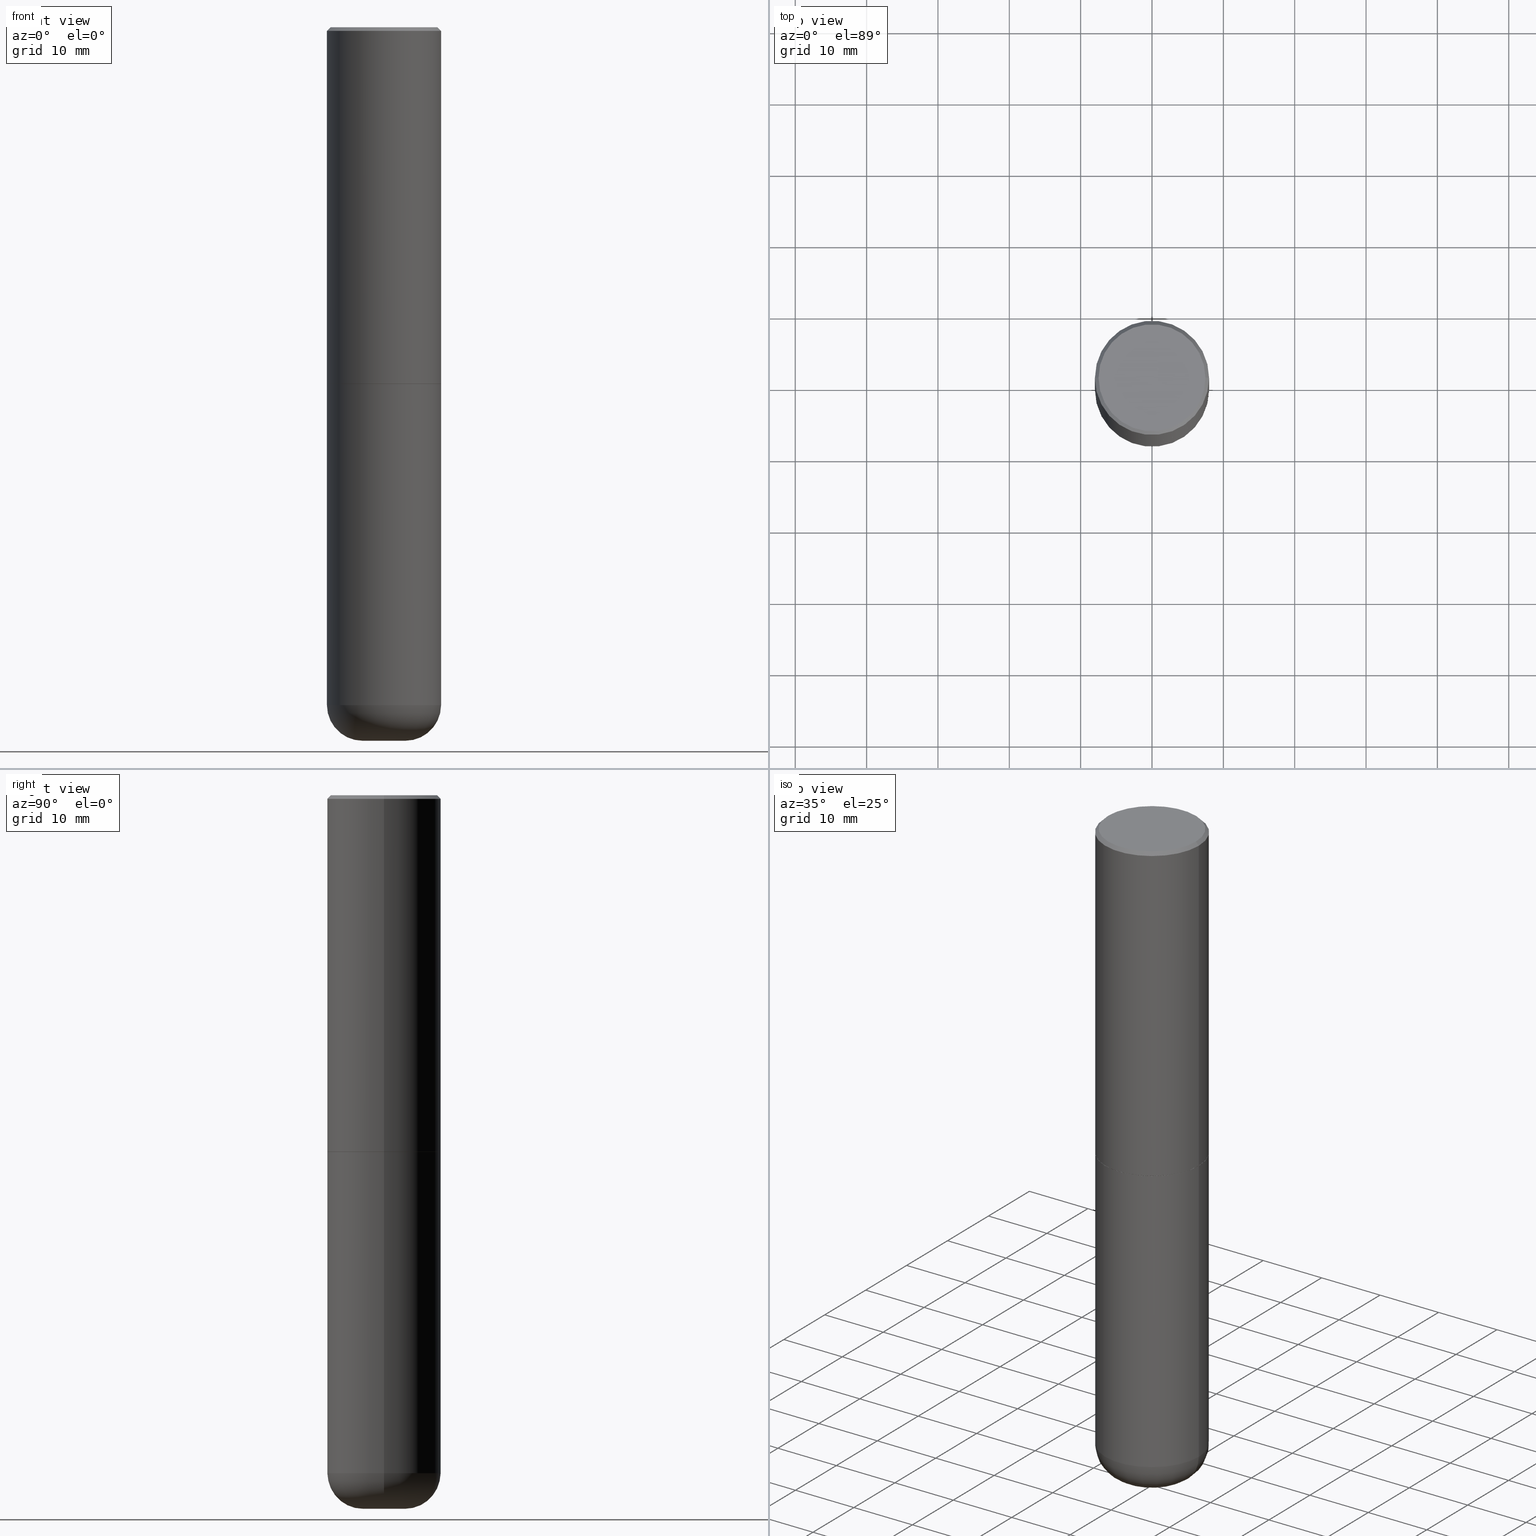
[diagram: canonical four-view strip — front | top / right | iso, engineering-drawing reading convention]
A machine part, canonical four-view strip (front | top / right | iso — engineering-drawing reading convention). The complete STEP part file that produces these views, byte-faithful:
ISO-10303-21;
HEADER;
FILE_DESCRIPTION (( 'STEP AP203' ),
    '1' );
FILE_NAME ('42628.STEP',
    '2024-03-03T22:19:23',
    ( '' ),
    ( '' ),
    'SwSTEP 2.0',
    'SolidWorks 2023',
    '' );
FILE_SCHEMA (( 'CONFIG_CONTROL_DESIGN' ));
ENDSEC;

DATA;
#1 = UNCERTAINTY_MEASURE_WITH_UNIT (LENGTH_MEASURE( 1.000000000000000082E-05 ), #382, 'distance_accuracy_value', 'NONE');
#2 = ORIENTED_EDGE ( 'NONE', *, *, #5, .T. ) ;
#3 = APPLICATION_CONTEXT ( 'configuration controlled 3d designs of mechanical parts and assemblies' ) ;
#4 = AXIS2_PLACEMENT_3D ( 'NONE', #415, #354, #408 ) ;
#5 = EDGE_CURVE ( 'NONE', #242, #30, #359, .T. ) ;
#6 = ORIENTED_EDGE ( 'NONE', *, *, #285, .T. ) ;
#7 = CARTESIAN_POINT ( 'NONE',  ( 0.3139500000000000068, -9.065282148172338719E-15, -1.968500000000000583 ) ) ;
#8 = APPROVAL_DATE_TIME ( #44, #115 ) ;
#9 = ORIENTED_EDGE ( 'NONE', *, *, #209, .T. ) ;
#10 = AXIS2_PLACEMENT_3D ( 'NONE', #411, #251, #190 ) ;
#11 = CARTESIAN_POINT ( 'NONE',  ( -0.1180500000000000438, -1.186390067029574163E-14, -3.937000000000000277 ) ) ;
#12 = EDGE_CURVE ( 'NONE', #186, #287, #225, .T. ) ;
#13 = APPROVAL_STATUS ( 'not_yet_approved' ) ;
#14 = CARTESIAN_POINT ( 'NONE',  ( 0.1180500000000000160, -1.388282809950811403E-14, -3.740100000000000424 ) ) ;
#15 = DIRECTION ( 'NONE',  ( 2.438088387897960049E-29, -3.491481338843145188E-15, -1.000000000000000000 ) ) ;
#16 = APPROVAL_PERSON_ORGANIZATION ( #158, #109, #239 ) ;
#17 = DIRECTION ( 'NONE',  ( 1.000000000000000000, -6.982962677686265922E-15, 4.876176775795935793E-29 ) ) ;
#18 = CARTESIAN_POINT ( 'NONE',  ( -7.306959900346538153E-46, 1.043240219266313067E-31, 2.987958743070287587E-17 ) ) ;
#19 = DIRECTION ( 'NONE',  ( 1.000000000000000000, -6.982962677686267499E-15, 4.876696176320539145E-29 ) ) ;
#20 = CC_DESIGN_DATE_AND_TIME_ASSIGNMENT ( #272, #40, ( #208 ) ) ;
#21 = CIRCLE ( 'NONE', #93, 0.3139500000000000068 ) ;
#22 = DIRECTION ( 'NONE',  ( 1.000000000000000000, -6.982962677686269866E-15, 0.000000000000000000 ) ) ;
#23 = FACE_OUTER_BOUND ( 'NONE', #57, .T. ) ;
#24 = EDGE_CURVE ( 'NONE', #86, #153, #233, .T. ) ;
#25 = CARTESIAN_POINT ( 'NONE',  ( 9.146297882013029477E-29, -1.305848935540725085E-14, -3.740100000000000424 ) ) ;
#26 = EDGE_LOOP ( 'NONE', ( #150, #160, #295, #218 ) ) ;
#27 = ADVANCED_FACE ( 'NONE', ( #78 ), #81, .T. ) ;
#28 = APPLICATION_PROTOCOL_DEFINITION ( 'international standard', 'config_control_design', 1994, #398 ) ;
#29 = AXIS2_PLACEMENT_3D ( 'NONE', #347, #51, #378 ) ;
#30 = VERTEX_POINT ( 'NONE', #365 ) ;
#31 = CARTESIAN_POINT ( 'NONE',  ( 4.890937612370289799E-31, -6.982962677686315028E-17, -0.02000000000000006981 ) ) ;
#32 = ORIENTED_EDGE ( 'NONE', *, *, #174, .F. ) ;
#33 = VERTEX_POINT ( 'NONE', #392 ) ;
#34 = ADVANCED_FACE ( 'NONE', ( #299 ), #307, .T. ) ;
#35 = CARTESIAN_POINT ( 'NONE',  ( 0.000000000000000000, 0.000000000000000000, 0.000000000000000000 ) ) ;
#36 = AXIS2_PLACEMENT_3D ( 'NONE', #25, #379, #183 ) ;
#37 = DIRECTION ( 'NONE',  ( -2.445468806185136597E-29, 3.491481338843145583E-15, 1.000000000000000000 ) ) ;
#38 = PERSON_AND_ORGANIZATION ( #204, #59 ) ;
#39 = ORIENTED_EDGE ( 'NONE', *, *, #105, .T. ) ;
#40 = DATE_TIME_ROLE ( 'creation_date' ) ;
#41 = LINE ( 'NONE', #7, #177 ) ;
#42 = CONICAL_SURFACE ( 'NONE', #281, 0.3139500000000000068, 0.7853981633974141952 ) ;
#43 = CIRCLE ( 'NONE', #282, 0.3149500000000002853 ) ;
#44 = DATE_AND_TIME ( #163, #243 ) ;
#45 = DIRECTION ( 'NONE',  ( -2.445468806185136597E-29, 3.491481338843145583E-15, 1.000000000000000000 ) ) ;
#46 = DIRECTION ( 'NONE',  ( 1.000000000000000000, -6.982962677686266711E-15, 4.876176775795936353E-29 ) ) ;
#47 = PLANE ( 'NONE',  #393 ) ;
#48 = LOCAL_TIME ( 17, 19, 23.00000000000000000, #98 ) ;
#49 = CARTESIAN_POINT ( 'NONE',  ( 4.890937612370289799E-31, -6.982962677686315028E-17, -0.02000000000000006981 ) ) ;
#50 = CARTESIAN_POINT ( 'NONE',  ( 9.146297882013029477E-29, -1.305848935540725085E-14, -3.740100000000000424 ) ) ;
#51 = DIRECTION ( 'NONE',  ( 2.438088387897960049E-29, -3.491481338843145188E-15, -1.000000000000000000 ) ) ;
#52 = VECTOR ( 'NONE', #227, 39.37007874015748143 ) ;
#53 = PERSON_AND_ORGANIZATION ( #204, #59 ) ;
#54 = ORIENTED_EDGE ( 'NONE', *, *, #179, .T. ) ;
#55 = ADVANCED_FACE ( 'NONE', ( #337 ), #42, .T. ) ;
#56 = DIRECTION ( 'NONE',  ( -2.445468806185136877E-29, 3.491481338843145188E-15, 1.000000000000000000 ) ) ;
#57 = EDGE_LOOP ( 'NONE', ( #356, #9, #123, #61 ) ) ;
#58 = DIRECTION ( 'NONE',  ( 0.000000000000000000, 0.000000000000000000, 1.000000000000000000 ) ) ;
#59 = ORGANIZATION ( 'UNSPECIFIED', 'UNSPECIFIED', '' ) ;
#60 = DIMENSIONAL_EXPONENTS ( 1.000000000000000000, 0.000000000000000000, 0.000000000000000000, 0.000000000000000000, 0.000000000000000000, 0.000000000000000000, 0.000000000000000000 ) ;
#61 = ORIENTED_EDGE ( 'NONE', *, *, #12, .F. ) ;
#62 = EDGE_LOOP ( 'NONE', ( #191, #383, #2, #193 ) ) ;
#63 = CALENDAR_DATE ( 2024, 3, 3 ) ;
#64 = ORIENTED_EDGE ( 'NONE', *, *, #87, .T. ) ;
#65 = COORDINATED_UNIVERSAL_TIME_OFFSET ( 5, 0, .BEHIND. ) ;
#66 = AXIS2_PLACEMENT_3D ( 'NONE', #92, #255, #294 ) ;
#67 = DIRECTION ( 'NONE',  ( 1.000000000000000000, -6.982962677686266711E-15, 0.000000000000000000 ) ) ;
#68 = PRODUCT ( '42628', '42628', '', ( #152 ) ) ;
#69 = EDGE_CURVE ( 'NONE', #327, #125, #410, .T. ) ;
#70 = MANIFOLD_SOLID_BREP ( 'Body-Move/Copy2[2]', #167 ) ;
#71 = APPLICATION_PROTOCOL_DEFINITION ( 'international standard', 'config_control_design', 1994, #3 ) ;
#72 = CARTESIAN_POINT ( 'NONE',  ( 4.813905344975442956E-29, -6.872981015512734074E-15, -1.968500000000000583 ) ) ;
#73 = PRODUCT_RELATED_PRODUCT_CATEGORY ( 'detail', '', ( #68 ) ) ;
#74 = CARTESIAN_POINT ( 'NONE',  ( 4.811459876169256792E-29, -6.869489534173889489E-15, -1.967500000000000249 ) ) ;
#75 = APPROVAL_DATE_TIME ( #366, #109 ) ;
#76 = DIRECTION ( 'NONE',  ( -1.000000000000000000, 6.982962677686265922E-15, -4.876176775795935793E-29 ) ) ;
#77 = AXIS2_PLACEMENT_3D ( 'NONE', #341, #172, #67 ) ;
#78 = FACE_OUTER_BOUND ( 'NONE', #322, .T. ) ;
#79 = DIRECTION ( 'NONE',  ( -1.000000000000000000, 6.982962677686266711E-15, 0.000000000000000000 ) ) ;
#80 = CARTESIAN_POINT ( 'NONE',  ( -0.3139500000000000068, -4.642232096593899886E-15, -1.968500000000000583 ) ) ;
#81 = CONICAL_SURFACE ( 'NONE', #252, 0.3139500000000000068, 0.7853981633974141952 ) ;
#82 = FACE_OUTER_BOUND ( 'NONE', #149, .T. ) ;
#83 = CARTESIAN_POINT ( 'NONE',  ( 0.000000000000000000, 0.000000000000000000, 0.000000000000000000 ) ) ;
#84 = LINE ( 'NONE', #147, #310 ) ;
#85 = VECTOR ( 'NONE', #56, 39.37007874015748143 ) ;
#86 = VERTEX_POINT ( 'NONE', #11 ) ;
#87 = EDGE_CURVE ( 'NONE', #86, #33, #101, .T. ) ;
#88 = ORIENTED_EDGE ( 'NONE', *, *, #395, .F. ) ;
#89 = DIRECTION ( 'NONE',  ( -1.000000000000000000, 6.982962677686266711E-15, 0.000000000000000000 ) ) ;
#90 = VERTEX_POINT ( 'NONE', #271 ) ;
#91 = EDGE_CURVE ( 'NONE', #153, #242, #122, .T. ) ;
#92 = CARTESIAN_POINT ( 'NONE',  ( 4.813905344975442956E-29, -6.872981015512734074E-15, -1.968500000000000583 ) ) ;
#93 = AXIS2_PLACEMENT_3D ( 'NONE', #220, #258, #263 ) ;
#94 = APPROVAL_PERSON_ORGANIZATION ( #38, #104, #229 ) ;
#95 = VERTEX_POINT ( 'NONE', #399 ) ;
#96 = APPROVAL_STATUS ( 'not_yet_approved' ) ;
#97 = ORIENTED_EDGE ( 'NONE', *, *, #372, .T. ) ;
#98 = COORDINATED_UNIVERSAL_TIME_OFFSET ( 5, 0, .BEHIND. ) ;
#99 = VERTEX_POINT ( 'NONE', #200 ) ;
#100 = ADVANCED_FACE ( 'NONE', ( #364 ), #162, .T. ) ;
#101 = CIRCLE ( 'NONE', #344, 0.1968999999999998529 ) ;
#102 = AXIS2_PLACEMENT_3D ( 'NONE', #18, #371, #19 ) ;
#103 = DIRECTION ( 'NONE',  ( -1.000000000000000000, 7.105427357600997914E-15, 0.000000000000000000 ) ) ;
#104 = APPROVAL ( #96, 'UNSPECIFIED' ) ;
#105 = EDGE_CURVE ( 'NONE', #296, #327, #41, .T. ) ;
#106 = DIRECTION ( 'NONE',  ( 1.000000000000000000, -6.982962677686270655E-15, 0.000000000000000000 ) ) ;
#107 = DATE_TIME_ROLE ( 'classification_date' ) ;
#108 = DIRECTION ( 'NONE',  ( -2.445468806185136597E-29, 3.491481338843145583E-15, 1.000000000000000000 ) ) ;
#109 = APPROVAL ( #13, 'UNSPECIFIED' ) ;
#110 = DIRECTION ( 'NONE',  ( 1.000000000000000000, -6.982962677686267499E-15, 0.000000000000000000 ) ) ;
#111 = CIRCLE ( 'NONE', #323, 0.3149500000000000077 ) ;
#112 = DIRECTION ( 'NONE',  ( 1.000000000000000000, -6.982962677686266711E-15, 4.883557194083112901E-29 ) ) ;
#113 = DIRECTION ( 'NONE',  ( 1.000000000000000000, -6.982962677686266711E-15, 4.883557194083112901E-29 ) ) ;
#114 = DIRECTION ( 'NONE',  ( -2.438088387897960049E-29, 3.491481338843145188E-15, 1.000000000000000000 ) ) ;
#115 = APPROVAL ( #328, 'UNSPECIFIED' ) ;
#116 = ADVANCED_FACE ( 'NONE', ( #132 ), #198, .T. ) ;
#117 = CIRCLE ( 'NONE', #159, 0.3149500000000000077 ) ;
#118 = APPROVAL_PERSON_ORGANIZATION ( #197, #115, #137 ) ;
#119 = CARTESIAN_POINT ( 'NONE',  ( 0.2949499999999999345, -2.127023677808860075E-15, 2.987958743071751910E-17 ) ) ;
#120 = CARTESIAN_POINT ( 'NONE',  ( 9.146297882013029477E-29, -1.305848935540725085E-14, -3.740100000000000424 ) ) ;
#121 = ORIENTED_EDGE ( 'NONE', *, *, #161, .F. ) ;
#122 = CIRCLE ( 'NONE', #145, 0.1968999999999998529 ) ;
#123 = ORIENTED_EDGE ( 'NONE', *, *, #245, .T. ) ;
#124 = ADVANCED_BREP_SHAPE_REPRESENTATION ( '42628', ( #210, #70, #195 ), #247 ) ;
#125 = VERTEX_POINT ( 'NONE', #335 ) ;
#126 = ORIENTED_EDGE ( 'NONE', *, *, #245, .F. ) ;
#127 = CARTESIAN_POINT ( 'NONE',  ( -0.3149500000000001743, 2.237854346276436774E-15, -1.549218606675783237E-29 ) ) ;
#128 = AXIS2_PLACEMENT_3D ( 'NONE', #83, #139, #46 ) ;
#129 = EDGE_LOOP ( 'NONE', ( #54, #64, #189, #355 ) ) ;
#130 = PERSON_AND_ORGANIZATION ( #204, #59 ) ;
#131 = CARTESIAN_POINT ( 'NONE',  ( 9.627810689950883669E-29, -1.374596203102546341E-14, -3.937000000000000277 ) ) ;
#132 = FACE_OUTER_BOUND ( 'NONE', #391, .T. ) ;
#133 = PERSON_AND_ORGANIZATION_ROLE ( 'design_supplier' ) ;
#134 = CONICAL_SURFACE ( 'NONE', #226, 0.3149500000000000077, 0.7853981633974473908 ) ;
#135 = CARTESIAN_POINT ( 'NONE',  ( -0.1180500000000000160, -1.221969365584245109E-14, -3.740100000000000424 ) ) ;
#136 = DIRECTION ( 'NONE',  ( -2.445468806185136597E-29, 3.491481338843145583E-15, 1.000000000000000000 ) ) ;
#137 = APPROVAL_ROLE ( '' ) ;
#138 = DIRECTION ( 'NONE',  ( -6.982962677686266711E-15, -1.000000000000000000, 3.491481338843145583E-15 ) ) ;
#139 = DIRECTION ( 'NONE',  ( -2.445468806185136597E-29, 3.491481338843145583E-15, 1.000000000000000000 ) ) ;
#140 = VECTOR ( 'NONE', #250, 39.37007874015748143 ) ;
#141 = EDGE_CURVE ( 'NONE', #99, #186, #305, .T. ) ;
#142 = DIRECTION ( 'NONE',  ( 1.000000000000000000, -6.982962677686267499E-15, 0.000000000000000000 ) ) ;
#143 = CARTESIAN_POINT ( 'NONE',  ( 4.811459876169256792E-29, -6.869489534173889489E-15, -1.967500000000000249 ) ) ;
#144 = CARTESIAN_POINT ( 'NONE',  ( 0.3149500000000001743, -2.199284095337290660E-15, 1.535751875536930690E-29 ) ) ;
#145 = AXIS2_PLACEMENT_3D ( 'NONE', #14, #138, #106 ) ;
#146 = CC_DESIGN_APPROVAL ( #115, ( #212 ) ) ;
#147 = CARTESIAN_POINT ( 'NONE',  ( 0.3149500000000000077, -2.230543471175007450E-15, -0.02000000000000006981 ) ) ;
#148 = DIRECTION ( 'NONE',  ( 1.000000000000000000, -6.982962677686269866E-15, 0.000000000000000000 ) ) ;
#149 = EDGE_LOOP ( 'NONE', ( #121, #377, #221, #203 ) ) ;
#150 = ORIENTED_EDGE ( 'NONE', *, *, #87, .F. ) ;
#151 = CC_DESIGN_APPROVAL ( #109, ( #208 ) ) ;
#152 = MECHANICAL_CONTEXT ( 'NONE', #398, 'mechanical' ) ;
#153 = VERTEX_POINT ( 'NONE', #181 ) ;
#154 = ORIENTED_EDGE ( 'NONE', *, *, #209, .F. ) ;
#155 = ADVANCED_FACE ( 'NONE', ( #82 ), #134, .T. ) ;
#156 = ORIENTED_EDGE ( 'NONE', *, *, #238, .F. ) ;
#157 = VECTOR ( 'NONE', #165, 39.37007874015748143 ) ;
#158 = PERSON_AND_ORGANIZATION ( #204, #59 ) ;
#159 = AXIS2_PLACEMENT_3D ( 'NONE', #215, #386, #148 ) ;
#160 = ORIENTED_EDGE ( 'NONE', *, *, #24, .T. ) ;
#161 = EDGE_CURVE ( 'NONE', #256, #287, #84, .T. ) ;
#162 = CYLINDRICAL_SURFACE ( 'NONE', #168, 0.3149500000000000077 ) ;
#163 = CALENDAR_DATE ( 2024, 3, 3 ) ;
#164 = ADVANCED_FACE ( 'NONE', ( #311 ), #342, .T. ) ;
#165 = DIRECTION ( 'NONE',  ( -2.445468806185136877E-29, 3.491481338843145188E-15, 1.000000000000000000 ) ) ;
#166 = CALENDAR_DATE ( 2024, 3, 3 ) ;
#167 = CLOSED_SHELL ( 'NONE', ( #55, #34, #360, #155, #301, #27, #219, #188 ) ) ;
#168 = AXIS2_PLACEMENT_3D ( 'NONE', #35, #108, #237 ) ;
#169 = DIRECTION ( 'NONE',  ( 2.438088387897960049E-29, -3.491481338843145188E-15, -1.000000000000000000 ) ) ;
#170 = CC_DESIGN_PERSON_AND_ORGANIZATION_ASSIGNMENT ( #53, #292, ( #68 ) ) ;
#171 = PERSON_AND_ORGANIZATION ( #204, #59 ) ;
#172 = DIRECTION ( 'NONE',  ( -2.445468806185136597E-29, 3.491481338843145583E-15, 1.000000000000000000 ) ) ;
#173 = CARTESIAN_POINT ( 'NONE',  ( 9.146297882013029477E-29, -1.305848935540725085E-14, -3.740100000000000424 ) ) ;
#174 = EDGE_CURVE ( 'NONE', #287, #186, #316, .T. ) ;
#175 = DIRECTION ( 'NONE',  ( -2.445468806185136597E-29, 3.491481338843145583E-15, 1.000000000000000000 ) ) ;
#176 = AXIS2_PLACEMENT_3D ( 'NONE', #205, #196, #331 ) ;
#177 = VECTOR ( 'NONE', #298, 39.37007874015748854 ) ;
#178 = CC_DESIGN_DATE_AND_TIME_ASSIGNMENT ( #235, #107, ( #340 ) ) ;
#179 = EDGE_CURVE ( 'NONE', #153, #86, #368, .T. ) ;
#180 = FACE_OUTER_BOUND ( 'NONE', #320, .T. ) ;
#181 = CARTESIAN_POINT ( 'NONE',  ( 0.1180500000000000438, -1.457030077512632659E-14, -3.937000000000000277 ) ) ;
#182 = CARTESIAN_POINT ( 'NONE',  ( 4.813905344975442395E-29, -6.872981015512733285E-15, -1.968500000000000361 ) ) ;
#183 = DIRECTION ( 'NONE',  ( 1.000000000000000000, -6.982962677686263555E-15, 0.000000000000000000 ) ) ;
#184 = CYLINDRICAL_SURFACE ( 'NONE', #4, 0.3149500000000001743 ) ;
#185 = ORIENTED_EDGE ( 'NONE', *, *, #302, .F. ) ;
#186 = VERTEX_POINT ( 'NONE', #214 ) ;
#187 = AXIS2_PLACEMENT_3D ( 'NONE', #50, #313, #113 ) ;
#188 = ADVANCED_FACE ( 'NONE', ( #180 ), #47, .F. ) ;
#189 = ORIENTED_EDGE ( 'NONE', *, *, #318, .F. ) ;
#190 = DIRECTION ( 'NONE',  ( 1.000000000000000000, -6.982962677686267499E-15, 4.876696176320539145E-29 ) ) ;
#191 = ORIENTED_EDGE ( 'NONE', *, *, #413, .F. ) ;
#192 = SHAPE_DEFINITION_REPRESENTATION ( #231, #124 ) ;
#193 = ORIENTED_EDGE ( 'NONE', *, *, #285, .F. ) ;
#194 = EDGE_CURVE ( 'NONE', #99, #256, #362, .T. ) ;
#195 = AXIS2_PLACEMENT_3D ( 'NONE', #321, #58, #324 ) ;
#196 = DIRECTION ( 'NONE',  ( -2.445468806185136597E-29, 3.491481338843145583E-15, 1.000000000000000000 ) ) ;
#197 = PERSON_AND_ORGANIZATION ( #204, #59 ) ;
#198 = PLANE ( 'NONE',  #216 ) ;
#199 = SECURITY_CLASSIFICATION_LEVEL ( 'unclassified' ) ;
#200 = CARTESIAN_POINT ( 'NONE',  ( -0.2949499999999999345, 2.094539655171995318E-15, 2.987958743068835590E-17 ) ) ;
#201 = PERSON_AND_ORGANIZATION ( #204, #59 ) ;
#202 = TOROIDAL_SURFACE ( 'NONE', #304, 0.1180500000000000160, 0.1968999999999998807 ) ;
#203 = ORIENTED_EDGE ( 'NONE', *, *, #12, .T. ) ;
#204 = PERSON ( 'UNSPECIFIED', 'UNSPECIFIED', 'UNSPECIFIED', ('UNSPECIFIED'), ('UNSPECIFIED'), ('UNSPECIFIED') ) ;
#205 = CARTESIAN_POINT ( 'NONE',  ( 0.000000000000000000, 0.000000000000000000, 0.000000000000000000 ) ) ;
#206 = ADVANCED_FACE ( 'NONE', ( #401 ), #202, .T. ) ;
#207 = CARTESIAN_POINT ( 'NONE',  ( 2.059624841783564063E-15, 0.2949499999999999345, -1.014872627176434088E-15 ) ) ;
#208 = PRODUCT_DEFINITION ( 'UNKNOWN', '', #212, #264 ) ;
#209 = EDGE_CURVE ( 'NONE', #125, #327, #43, .T. ) ;
#210 = MANIFOLD_SOLID_BREP ( 'Body-Move/Copy2[1]', #373 ) ;
#211 = LINE ( 'NONE', #144, #269 ) ;
#212 = PRODUCT_DEFINITION_FORMATION_WITH_SPECIFIED_SOURCE ( 'ANY', '', #68, .NOT_KNOWN. ) ;
#213 = DIRECTION ( 'NONE',  ( -2.445468806185136597E-29, 3.491481338843145583E-15, 1.000000000000000000 ) ) ;
#214 = CARTESIAN_POINT ( 'NONE',  ( -0.3149500000000000077, 2.129454468560426573E-15, -0.02000000000000006981 ) ) ;
#215 = CARTESIAN_POINT ( 'NONE',  ( 4.813905344975442395E-29, -6.872981015512733285E-15, -1.968500000000000361 ) ) ;
#216 = AXIS2_PLACEMENT_3D ( 'NONE', #367, #169, #76 ) ;
#217 =( NAMED_UNIT ( * ) PLANE_ANGLE_UNIT ( ) SI_UNIT ( $, .RADIAN. ) );
#218 = ORIENTED_EDGE ( 'NONE', *, *, #361, .F. ) ;
#219 = ADVANCED_FACE ( 'NONE', ( #278 ), #280, .F. ) ;
#220 = CARTESIAN_POINT ( 'NONE',  ( 4.813905344975442956E-29, -6.872981015512734074E-15, -1.968500000000000583 ) ) ;
#221 = ORIENTED_EDGE ( 'NONE', *, *, #141, .T. ) ;
#222 = ADVANCED_FACE ( 'NONE', ( #244 ), #349, .T. ) ;
#223 = CARTESIAN_POINT ( 'NONE',  ( -0.3149500000000000077, 2.237854346276435590E-15, -1.549218606675782676E-29 ) ) ;
#224 = ORIENTED_EDGE ( 'NONE', *, *, #318, .T. ) ;
#225 = CIRCLE ( 'NONE', #77, 0.3149500000000000077 ) ;
#226 = AXIS2_PLACEMENT_3D ( 'NONE', #309, #343, #79 ) ;
#227 = DIRECTION ( 'NONE',  ( -2.445468806185136877E-29, 3.491481338843145188E-15, 1.000000000000000000 ) ) ;
#228 = EDGE_LOOP ( 'NONE', ( #224, #232, #185, #265 ) ) ;
#229 = APPROVAL_ROLE ( '' ) ;
#230 = ORIENTED_EDGE ( 'NONE', *, *, #194, .T. ) ;
#231 = PRODUCT_DEFINITION_SHAPE ( 'NONE', 'NONE',  #208 ) ;
#232 = ORIENTED_EDGE ( 'NONE', *, *, #413, .T. ) ;
#233 = CIRCLE ( 'NONE', #315, 0.1180500000000000438 ) ;
#234 = VECTOR ( 'NONE', #370, 39.37007874015748854 ) ;
#235 = DATE_AND_TIME ( #166, #283 ) ;
#236 = APPROVAL_DATE_TIME ( #270, #104 ) ;
#237 = DIRECTION ( 'NONE',  ( 1.000000000000000000, -6.982962677686266711E-15, 4.876176775795936353E-29 ) ) ;
#238 = EDGE_CURVE ( 'NONE', #95, #125, #246, .T. ) ;
#239 = APPROVAL_ROLE ( '' ) ;
#240 = CARTESIAN_POINT ( 'NONE',  ( 4.813905344975442956E-29, -6.872981015512734074E-15, -1.968500000000000583 ) ) ;
#241 = CIRCLE ( 'NONE', #36, 0.3149500000000000077 ) ;
#242 = VERTEX_POINT ( 'NONE', #375 ) ;
#243 = LOCAL_TIME ( 17, 19, 23.00000000000000000, #65 ) ;
#244 = FACE_OUTER_BOUND ( 'NONE', #26, .T. ) ;
#245 = EDGE_CURVE ( 'NONE', #327, #287, #211, .T. ) ;
#246 = LINE ( 'NONE', #80, #234 ) ;
#247 =( GEOMETRIC_REPRESENTATION_CONTEXT ( 3 ) GLOBAL_UNCERTAINTY_ASSIGNED_CONTEXT ( ( #1 ) ) GLOBAL_UNIT_ASSIGNED_CONTEXT ( ( #382, #217, #384 ) ) REPRESENTATION_CONTEXT ( 'NONE', 'WORKASPACE' ) );
#248 = FACE_OUTER_BOUND ( 'NONE', #418, .T. ) ;
#249 = ORIENTED_EDGE ( 'NONE', *, *, #330, .T. ) ;
#250 = DIRECTION ( 'NONE',  ( -0.7071067811865469066, 2.468850131082249961E-15, -0.7071067811865482389 ) ) ;
#251 = DIRECTION ( 'NONE',  ( -2.445468806185136597E-29, 3.491481338843145583E-15, 1.000000000000000000 ) ) ;
#252 = AXIS2_PLACEMENT_3D ( 'NONE', #240, #45, #273 ) ;
#253 = ORIENTED_EDGE ( 'NONE', *, *, #333, .T. ) ;
#254 = LOCAL_TIME ( 17, 19, 23.00000000000000000, #396 ) ;
#255 = DIRECTION ( 'NONE',  ( -2.445468806185136597E-29, 3.491481338843145583E-15, 1.000000000000000000 ) ) ;
#256 = VERTEX_POINT ( 'NONE', #119 ) ;
#257 = CC_DESIGN_PERSON_AND_ORGANIZATION_ASSIGNMENT ( #306, #334, ( #340 ) ) ;
#258 = DIRECTION ( 'NONE',  ( -2.445468806185136597E-29, 3.491481338843145583E-15, 1.000000000000000000 ) ) ;
#259 = ORIENTED_EDGE ( 'NONE', *, *, #395, .T. ) ;
#260 = CARTESIAN_POINT ( 'NONE',  ( 0.3149500000000002853, -9.068773629511181726E-15, -1.967500000000000249 ) ) ;
#261 = EDGE_LOOP ( 'NONE', ( #88, #409, #293, #358 ) ) ;
#262 = CIRCLE ( 'NONE', #10, 0.2949499999999999345 ) ;
#263 = DIRECTION ( 'NONE',  ( 1.000000000000000000, -6.982962677686269077E-15, 0.000000000000000000 ) ) ;
#264 = DESIGN_CONTEXT ( 'detailed design', #3, 'design' ) ;
#265 = ORIENTED_EDGE ( 'NONE', *, *, #5, .F. ) ;
#266 = DIRECTION ( 'NONE',  ( -2.445468806185136597E-29, 3.491481338843145583E-15, 1.000000000000000000 ) ) ;
#267 = ORIENTED_EDGE ( 'NONE', *, *, #333, .F. ) ;
#268 = ADVANCED_FACE ( 'NONE', ( #248 ), #376, .F. ) ;
#269 = VECTOR ( 'NONE', #406, 39.37007874015748143 ) ;
#270 = DATE_AND_TIME ( #63, #277 ) ;
#271 = CARTESIAN_POINT ( 'NONE',  ( -0.3149500000000000077, -7.727880839183556085E-15, -1.968500000000000361 ) ) ;
#272 = DATE_AND_TIME ( #336, #254 ) ;
#273 = DIRECTION ( 'NONE',  ( 1.000000000000000000, -6.982962677686269077E-15, 0.000000000000000000 ) ) ;
#274 = COORDINATED_UNIVERSAL_TIME_OFFSET ( 5, 0, .BEHIND. ) ;
#275 = CARTESIAN_POINT ( 'NONE',  ( -0.3149500000000000077, 2.129454468560426573E-15, -0.02000000000000006981 ) ) ;
#276 = DIRECTION ( 'NONE',  ( -1.000000000000000000, 6.982962677686265922E-15, -4.876176775795935793E-29 ) ) ;
#277 = LOCAL_TIME ( 17, 19, 23.00000000000000000, #357 ) ;
#278 = FACE_OUTER_BOUND ( 'NONE', #381, .T. ) ;
#279 = DIRECTION ( 'NONE',  ( 1.000000000000000000, -6.982962677686266711E-15, 0.000000000000000000 ) ) ;
#280 = PLANE ( 'NONE',  #412 ) ;
#281 = AXIS2_PLACEMENT_3D ( 'NONE', #72, #136, #303 ) ;
#282 = AXIS2_PLACEMENT_3D ( 'NONE', #143, #175, #142 ) ;
#283 = LOCAL_TIME ( 17, 19, 23.00000000000000000, #274 ) ;
#284 = CARTESIAN_POINT ( 'NONE',  ( 0.3149500000000000077, -2.230543471175007450E-15, -0.02000000000000006981 ) ) ;
#285 = EDGE_CURVE ( 'NONE', #90, #30, #111, .T. ) ;
#286 = LINE ( 'NONE', #127, #85 ) ;
#287 = VERTEX_POINT ( 'NONE', #284 ) ;
#288 = DIRECTION ( 'NONE',  ( 2.445468806185136597E-29, -3.491481338843145583E-15, -1.000000000000000000 ) ) ;
#289 = AXIS2_PLACEMENT_3D ( 'NONE', #74, #37, #110 ) ;
#290 = ORIENTED_EDGE ( 'NONE', *, *, #238, .T. ) ;
#291 = CC_DESIGN_SECURITY_CLASSIFICATION ( #340, ( #212 ) ) ;
#292 = PERSON_AND_ORGANIZATION_ROLE ( 'design_owner' ) ;
#293 = ORIENTED_EDGE ( 'NONE', *, *, #174, .T. ) ;
#294 = DIRECTION ( 'NONE',  ( 1.000000000000000000, -6.982962677686269077E-15, 0.000000000000000000 ) ) ;
#295 = ORIENTED_EDGE ( 'NONE', *, *, #91, .T. ) ;
#296 = VERTEX_POINT ( 'NONE', #317 ) ;
#297 = AXIS2_PLACEMENT_3D ( 'NONE', #402, #346, #345 ) ;
#298 = DIRECTION ( 'NONE',  ( 0.7071067811865232589, -2.468850131082003836E-15, 0.7071067811865715536 ) ) ;
#299 = FACE_OUTER_BOUND ( 'NONE', #353, .T. ) ;
#300 = CALENDAR_DATE ( 2024, 3, 3 ) ;
#301 = ADVANCED_FACE ( 'NONE', ( #23 ), #184, .T. ) ;
#302 = EDGE_CURVE ( 'NONE', #30, #90, #117, .T. ) ;
#303 = DIRECTION ( 'NONE',  ( 1.000000000000000000, -6.982962677686269077E-15, 0.000000000000000000 ) ) ;
#304 = AXIS2_PLACEMENT_3D ( 'NONE', #173, #407, #112 ) ;
#305 = LINE ( 'NONE', #275, #140 ) ;
#306 = PERSON_AND_ORGANIZATION ( #204, #59 ) ;
#307 = CYLINDRICAL_SURFACE ( 'NONE', #176, 0.3149500000000001743 ) ;
#308 = CC_DESIGN_PERSON_AND_ORGANIZATION_ASSIGNMENT ( #201, #339, ( #208 ) ) ;
#309 = CARTESIAN_POINT ( 'NONE',  ( 4.890937612370289799E-31, -6.982962677686315028E-17, -0.02000000000000006981 ) ) ;
#310 = VECTOR ( 'NONE', #312, 39.37007874015748143 ) ;
#311 = FACE_OUTER_BOUND ( 'NONE', #228, .T. ) ;
#312 = DIRECTION ( 'NONE',  ( 0.7071067811865469066, -7.319954787623254468E-15, -0.7071067811865482389 ) ) ;
#313 = DIRECTION ( 'NONE',  ( -2.445468806185136597E-29, 3.491481338843145583E-15, 1.000000000000000000 ) ) ;
#314 = DIRECTION ( 'NONE',  ( -2.445468806185136597E-29, 3.491481338843145583E-15, 1.000000000000000000 ) ) ;
#315 = AXIS2_PLACEMENT_3D ( 'NONE', #131, #266, #394 ) ;
#316 = CIRCLE ( 'NONE', #388, 0.3149500000000000077 ) ;
#317 = CARTESIAN_POINT ( 'NONE',  ( 0.3139500000000000068, -9.065282148172338719E-15, -1.968500000000000583 ) ) ;
#318 = EDGE_CURVE ( 'NONE', #242, #33, #400, .T. ) ;
#319 = DIRECTION ( 'NONE',  ( -2.445468806185136597E-29, 3.491481338843145583E-15, 1.000000000000000000 ) ) ;
#320 = EDGE_LOOP ( 'NONE', ( #230, #259 ) ) ;
#321 = CARTESIAN_POINT ( 'NONE',  ( 0.000000000000000000, 0.000000000000000000, 0.000000000000000000 ) ) ;
#322 = EDGE_LOOP ( 'NONE', ( #156, #249, #39, #154 ) ) ;
#323 = AXIS2_PLACEMENT_3D ( 'NONE', #182, #314, #22 ) ;
#324 = DIRECTION ( 'NONE',  ( 1.000000000000000000, 0.000000000000000000, 0.000000000000000000 ) ) ;
#325 = ORIENTED_EDGE ( 'NONE', *, *, #24, .F. ) ;
#326 =( LENGTH_UNIT ( ) NAMED_UNIT ( * ) SI_UNIT ( $, .METRE. ) );
#327 = VERTEX_POINT ( 'NONE', #260 ) ;
#328 = APPROVAL_STATUS ( 'not_yet_approved' ) ;
#329 = ORIENTED_EDGE ( 'NONE', *, *, #179, .F. ) ;
#330 = EDGE_CURVE ( 'NONE', #95, #296, #21, .T. ) ;
#331 = DIRECTION ( 'NONE',  ( 1.000000000000000000, -6.982962677686265922E-15, 4.876176775795935232E-29 ) ) ;
#332 = CC_DESIGN_PERSON_AND_ORGANIZATION_ASSIGNMENT ( #130, #133, ( #212 ) ) ;
#333 = EDGE_CURVE ( 'NONE', #296, #95, #380, .T. ) ;
#334 = PERSON_AND_ORGANIZATION_ROLE ( 'classification_officer' ) ;
#335 = CARTESIAN_POINT ( 'NONE',  ( -0.3149500000000002853, -1.231805234198937253E-15, -1.967500000000000249 ) ) ;
#336 = CALENDAR_DATE ( 2024, 3, 3 ) ;
#337 = FACE_OUTER_BOUND ( 'NONE', #414, .T. ) ;
#338 = AXIS2_PLACEMENT_3D ( 'NONE', #120, #319, #352 ) ;
#339 = PERSON_AND_ORGANIZATION_ROLE ( 'creator' ) ;
#340 = SECURITY_CLASSIFICATION ( '', '', #199 ) ;
#341 = CARTESIAN_POINT ( 'NONE',  ( 4.890937612370289799E-31, -6.982962677686315028E-17, -0.02000000000000006981 ) ) ;
#342 = CYLINDRICAL_SURFACE ( 'NONE', #128, 0.3149500000000000077 ) ;
#343 = DIRECTION ( 'NONE',  ( 2.445468806185136597E-29, -3.491481338843145583E-15, -1.000000000000000000 ) ) ;
#344 = AXIS2_PLACEMENT_3D ( 'NONE', #135, #397, #103 ) ;
#345 = DIRECTION ( 'NONE',  ( 1.000000000000000000, -6.982962677686258822E-15, 0.000000000000000000 ) ) ;
#346 = DIRECTION ( 'NONE',  ( -2.445468806185136597E-29, 3.491481338843145583E-15, 1.000000000000000000 ) ) ;
#347 = CARTESIAN_POINT ( 'NONE',  ( 4.813905344975442395E-29, -6.872981015512733285E-15, -1.968500000000000361 ) ) ;
#348 = FACE_OUTER_BOUND ( 'NONE', #261, .T. ) ;
#349 = TOROIDAL_SURFACE ( 'NONE', #187, 0.1180500000000000160, 0.1968999999999998807 ) ;
#350 = CC_DESIGN_APPROVAL ( #104, ( #340 ) ) ;
#351 = ORIENTED_EDGE ( 'NONE', *, *, #105, .F. ) ;
#352 = DIRECTION ( 'NONE',  ( 1.000000000000000000, -6.982962677686263555E-15, 0.000000000000000000 ) ) ;
#353 = EDGE_LOOP ( 'NONE', ( #390, #97, #32, #126 ) ) ;
#354 = DIRECTION ( 'NONE',  ( -2.445468806185136597E-29, 3.491481338843145583E-15, 1.000000000000000000 ) ) ;
#355 = ORIENTED_EDGE ( 'NONE', *, *, #91, .F. ) ;
#356 = ORIENTED_EDGE ( 'NONE', *, *, #372, .F. ) ;
#357 = COORDINATED_UNIVERSAL_TIME_OFFSET ( 5, 0, .BEHIND. ) ;
#358 = ORIENTED_EDGE ( 'NONE', *, *, #141, .F. ) ;
#359 = LINE ( 'NONE', #369, #157 ) ;
#360 = ADVANCED_FACE ( 'NONE', ( #348 ), #405, .T. ) ;
#361 = EDGE_CURVE ( 'NONE', #33, #242, #241, .T. ) ;
#362 = CIRCLE ( 'NONE', #102, 0.2949499999999999345 ) ;
#363 = PERSON_AND_ORGANIZATION_ROLE ( 'creator' ) ;
#364 = FACE_OUTER_BOUND ( 'NONE', #62, .T. ) ;
#365 = CARTESIAN_POINT ( 'NONE',  ( 0.3149500000000000077, -9.072265110850023156E-15, -1.968500000000000361 ) ) ;
#366 = DATE_AND_TIME ( #300, #48 ) ;
#367 = CARTESIAN_POINT ( 'NONE',  ( 9.627810689950883669E-29, -1.374596203102546341E-14, -3.937000000000000277 ) ) ;
#368 = CIRCLE ( 'NONE', #297, 0.1180500000000000438 ) ;
#369 = CARTESIAN_POINT ( 'NONE',  ( 0.3149500000000000077, -2.199284095337289871E-15, 1.535751875536930130E-29 ) ) ;
#370 = DIRECTION ( 'NONE',  ( -0.7071067811865232589, 7.493145998870265808E-15, 0.7071067811865715536 ) ) ;
#371 = DIRECTION ( 'NONE',  ( -2.445468806185136597E-29, 3.491481338843145583E-15, 1.000000000000000000 ) ) ;
#372 = EDGE_CURVE ( 'NONE', #125, #186, #286, .T. ) ;
#373 = CLOSED_SHELL ( 'NONE', ( #164, #206, #268, #100, #222, #116 ) ) ;
#374 = AXIS2_PLACEMENT_3D ( 'NONE', #31, #288, #89 ) ;
#375 = CARTESIAN_POINT ( 'NONE',  ( 0.3149499999999999522, -1.525777345074454073E-14, -3.740100000000000424 ) ) ;
#376 = PLANE ( 'NONE',  #29 ) ;
#377 = ORIENTED_EDGE ( 'NONE', *, *, #194, .F. ) ;
#378 = DIRECTION ( 'NONE',  ( -1.000000000000000000, 6.982962677686265922E-15, -4.876176775795935793E-29 ) ) ;
#379 = DIRECTION ( 'NONE',  ( -2.445468806185136597E-29, 3.491481338843145583E-15, 1.000000000000000000 ) ) ;
#380 = CIRCLE ( 'NONE', #66, 0.3139500000000000068 ) ;
#381 = EDGE_LOOP ( 'NONE', ( #267, #385 ) ) ;
#382 =( CONVERSION_BASED_UNIT ( 'INCH', #417 ) LENGTH_UNIT ( ) NAMED_UNIT ( #60 ) );
#383 = ORIENTED_EDGE ( 'NONE', *, *, #361, .T. ) ;
#384 =( NAMED_UNIT ( * ) SI_UNIT ( $, .STERADIAN. ) SOLID_ANGLE_UNIT ( ) );
#385 = ORIENTED_EDGE ( 'NONE', *, *, #330, .F. ) ;
#386 = DIRECTION ( 'NONE',  ( -2.445468806185136597E-29, 3.491481338843145583E-15, 1.000000000000000000 ) ) ;
#387 = ORIENTED_EDGE ( 'NONE', *, *, #302, .T. ) ;
#388 = AXIS2_PLACEMENT_3D ( 'NONE', #49, #213, #279 ) ;
#389 = LINE ( 'NONE', #223, #52 ) ;
#390 = ORIENTED_EDGE ( 'NONE', *, *, #69, .T. ) ;
#391 = EDGE_LOOP ( 'NONE', ( #329, #325 ) ) ;
#392 = CARTESIAN_POINT ( 'NONE',  ( -0.3149499999999999522, -1.082063500913081645E-14, -3.740100000000000424 ) ) ;
#393 = AXIS2_PLACEMENT_3D ( 'NONE', #207, #15, #276 ) ;
#394 = DIRECTION ( 'NONE',  ( 1.000000000000000000, -6.982962677686258822E-15, 0.000000000000000000 ) ) ;
#395 = EDGE_CURVE ( 'NONE', #256, #99, #262, .T. ) ;
#396 = COORDINATED_UNIVERSAL_TIME_OFFSET ( 5, 0, .BEHIND. ) ;
#397 = DIRECTION ( 'NONE',  ( 7.105427357601001859E-15, 1.000000000000000000, -3.491481338843145583E-15 ) ) ;
#398 = APPLICATION_CONTEXT ( 'configuration controlled 3d designs of mechanical parts and assemblies' ) ;
#399 = CARTESIAN_POINT ( 'NONE',  ( -0.3139500000000000068, -4.636933642245675906E-15, -1.968500000000000583 ) ) ;
#400 = CIRCLE ( 'NONE', #338, 0.3149500000000000077 ) ;
#401 = FACE_OUTER_BOUND ( 'NONE', #129, .T. ) ;
#402 = CARTESIAN_POINT ( 'NONE',  ( 9.627810689950883669E-29, -1.374596203102546341E-14, -3.937000000000000277 ) ) ;
#403 = CC_DESIGN_PERSON_AND_ORGANIZATION_ASSIGNMENT ( #171, #363, ( #212 ) ) ;
#404 = CARTESIAN_POINT ( 'NONE',  ( 4.813905344975442956E-29, -6.872981015512734074E-15, -1.968500000000000583 ) ) ;
#405 = CONICAL_SURFACE ( 'NONE', #374, 0.3149500000000000077, 0.7853981633974473908 ) ;
#406 = DIRECTION ( 'NONE',  ( -2.445468806185136877E-29, 3.491481338843145188E-15, 1.000000000000000000 ) ) ;
#407 = DIRECTION ( 'NONE',  ( -2.445468806185136597E-29, 3.491481338843145583E-15, 1.000000000000000000 ) ) ;
#408 = DIRECTION ( 'NONE',  ( 1.000000000000000000, -6.982962677686265922E-15, 4.876176775795935232E-29 ) ) ;
#409 = ORIENTED_EDGE ( 'NONE', *, *, #161, .T. ) ;
#410 = CIRCLE ( 'NONE', #289, 0.3149500000000002853 ) ;
#411 = CARTESIAN_POINT ( 'NONE',  ( -7.306959900346538153E-46, 1.043240219266313067E-31, 2.987958743070287587E-17 ) ) ;
#412 = AXIS2_PLACEMENT_3D ( 'NONE', #404, #114, #17 ) ;
#413 = EDGE_CURVE ( 'NONE', #33, #90, #389, .T. ) ;
#414 = EDGE_LOOP ( 'NONE', ( #253, #290, #416, #351 ) ) ;
#415 = CARTESIAN_POINT ( 'NONE',  ( 0.000000000000000000, 0.000000000000000000, 0.000000000000000000 ) ) ;
#416 = ORIENTED_EDGE ( 'NONE', *, *, #69, .F. ) ;
#417 = LENGTH_MEASURE_WITH_UNIT ( LENGTH_MEASURE( 0.02539999999999999897 ), #326 );
#418 = EDGE_LOOP ( 'NONE', ( #387, #6 ) ) ;
ENDSEC;
END-ISO-10303-21;
